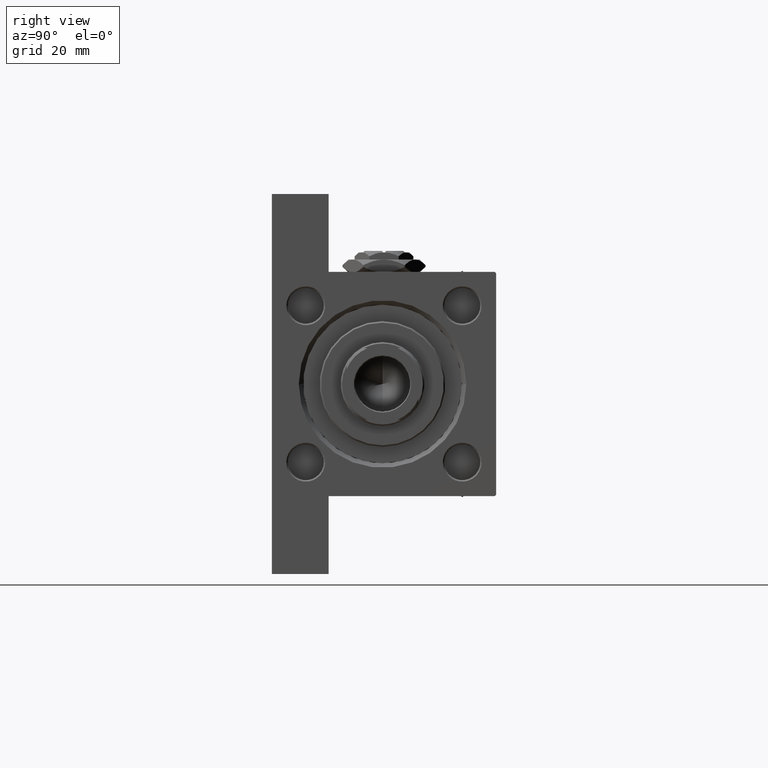
[diagram: clean part render]
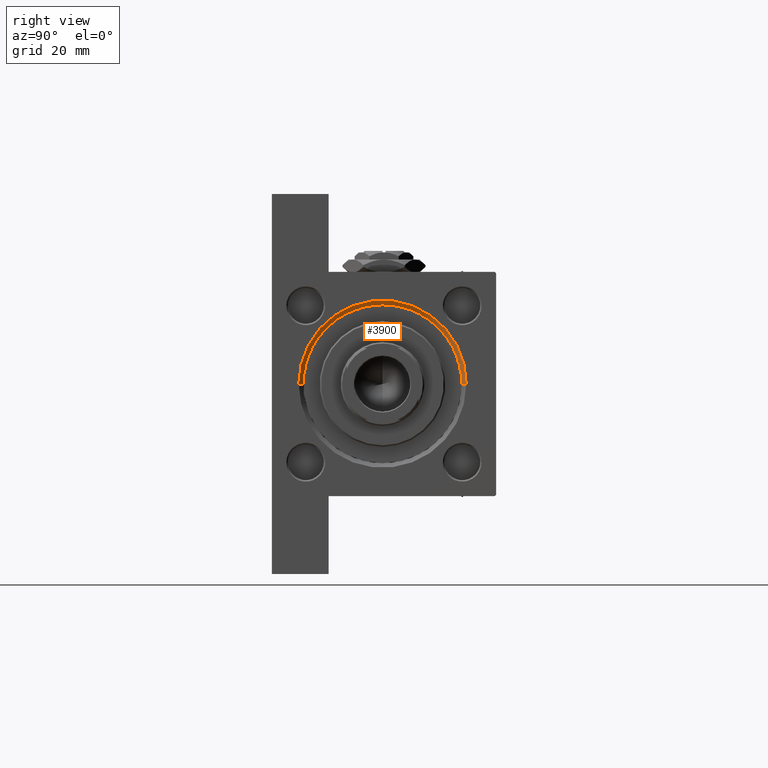
[diagram: same view with one face highlighted and labeled with its STEP entity id]
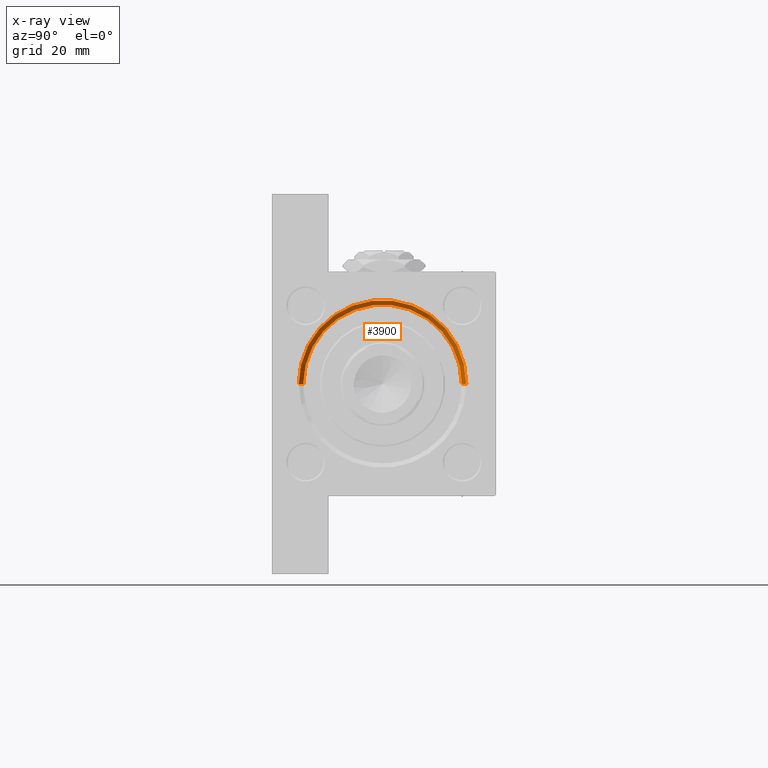
[diagram: x-ray of the same camera — body ghosted, the highlighted face saturated]
A machine part, right view. The second image highlights one B-rep face of the part: STEP entity #3900.
The next image is the same camera in x-ray: the body ghosted, the highlighted face saturated — about 0% of this face is hidden behind the body in this view.
In plain terms, the highlighted conical surface has half-angle 45 deg.
Its self-contained STEP definition (entity closure, byte-faithful):
#1558 = EDGE_CURVE ( 'NONE', #28331, #28633, #37420, .T. ) ;
#1679 = AXIS2_PLACEMENT_3D ( 'NONE', #28207, #19427, #46300 ) ;
#1974 = ORIENTED_EDGE ( 'NONE', *, *, #2641, .F. ) ;
#2641 = EDGE_CURVE ( 'NONE', #45109, #28633, #23356, .T. ) ;
#3529 = ORIENTED_EDGE ( 'NONE', *, *, #36282, .F. ) ;
#3900 = ADVANCED_FACE ( 'NONE', ( #34235 ), #13032, .F. ) ;
#11875 = DIRECTION ( 'NONE',  ( 0.7071067811865361374, 0.000000000000000000, -0.7071067811865588970 ) ) ;
#13032 = CONICAL_SURFACE ( 'NONE', #33864, 26.50000000000000355, 0.7853981633974644883 ) ;
#13230 = CARTESIAN_POINT ( 'NONE',  ( 154.0000000000000000, 0.000000000000000000, -28.49999999999999645 ) ) ;
#14601 = ORIENTED_EDGE ( 'NONE', *, *, #44204, .F. ) ;
#15126 = CARTESIAN_POINT ( 'NONE',  ( 152.5000000000000568, 0.000000000000000000, -0.5000000000000004441 ) ) ;
#18294 = DIRECTION ( 'NONE',  ( 1.000000000000000000, 0.000000000000000000, 0.000000000000000000 ) ) ;
#18344 = CARTESIAN_POINT ( 'NONE',  ( 152.5000000000000568, 3.245314017740486554E-15, 26.00000000000000355 ) ) ;
#18525 = CARTESIAN_POINT ( 'NONE',  ( 152.5000000000000568, 0.000000000000000000, -0.5000000000000004441 ) ) ;
#19427 = DIRECTION ( 'NONE',  ( -1.000000000000000000, -0.000000000000000000, 0.000000000000000000 ) ) ;
#20150 = CARTESIAN_POINT ( 'NONE',  ( 152.5000000000000568, 0.000000000000000000, -27.00000000000000355 ) ) ;
#22321 = CARTESIAN_POINT ( 'NONE',  ( 152.5000000000000568, 0.000000000000000000, -27.00000000000000355 ) ) ;
#23356 = CIRCLE ( 'NONE', #1679, 27.99999999999999645 ) ;
#27409 = VERTEX_POINT ( 'NONE', #22321 ) ;
#28207 = CARTESIAN_POINT ( 'NONE',  ( 154.0000000000000000, 0.000000000000000000, -0.5000000000000004441 ) ) ;
#28331 = VERTEX_POINT ( 'NONE', #39447 ) ;
#28633 = VERTEX_POINT ( 'NONE', #44868 ) ;
#29889 = DIRECTION ( 'NONE',  ( 0.7071067811865361374, 8.659560562355073374E-17, 0.7071067811865588970 ) ) ;
#31522 = ORIENTED_EDGE ( 'NONE', *, *, #1558, .T. ) ;
#31926 = EDGE_LOOP ( 'NONE', ( #14601, #31522, #1974, #3529 ) ) ;
#33864 = AXIS2_PLACEMENT_3D ( 'NONE', #15126, #45762, #35688 ) ;
#34235 = FACE_OUTER_BOUND ( 'NONE', #31926, .T. ) ;
#35688 = DIRECTION ( 'NONE',  ( 0.000000000000000000, 0.000000000000000000, -1.000000000000000000 ) ) ;
#36282 = EDGE_CURVE ( 'NONE', #27409, #45109, #42513, .T. ) ;
#37420 = LINE ( 'NONE', #18344, #38566 ) ;
#37608 = DIRECTION ( 'NONE',  ( 0.000000000000000000, 0.000000000000000000, 1.000000000000000000 ) ) ;
#37781 = VECTOR ( 'NONE', #11875, 1000.000000000000114 ) ;
#38566 = VECTOR ( 'NONE', #29889, 1000.000000000000114 ) ;
#39447 = CARTESIAN_POINT ( 'NONE',  ( 152.5000000000000568, 3.245314017740486554E-15, 26.00000000000000355 ) ) ;
#42513 = LINE ( 'NONE', #20150, #37781 ) ;
#44204 = EDGE_CURVE ( 'NONE', #28331, #27409, #44468, .T. ) ;
#44468 = CIRCLE ( 'NONE', #48475, 26.50000000000000355 ) ;
#44868 = CARTESIAN_POINT ( 'NONE',  ( 154.0000000000000000, 3.429011037612588881E-15, 27.49999999999999645 ) ) ;
#45109 = VERTEX_POINT ( 'NONE', #13230 ) ;
#45762 = DIRECTION ( 'NONE',  ( 1.000000000000000000, 0.000000000000000000, 0.000000000000000000 ) ) ;
#46300 = DIRECTION ( 'NONE',  ( 0.000000000000000000, 0.000000000000000000, 1.000000000000000000 ) ) ;
#48475 = AXIS2_PLACEMENT_3D ( 'NONE', #18525, #18294, #37608 ) ;